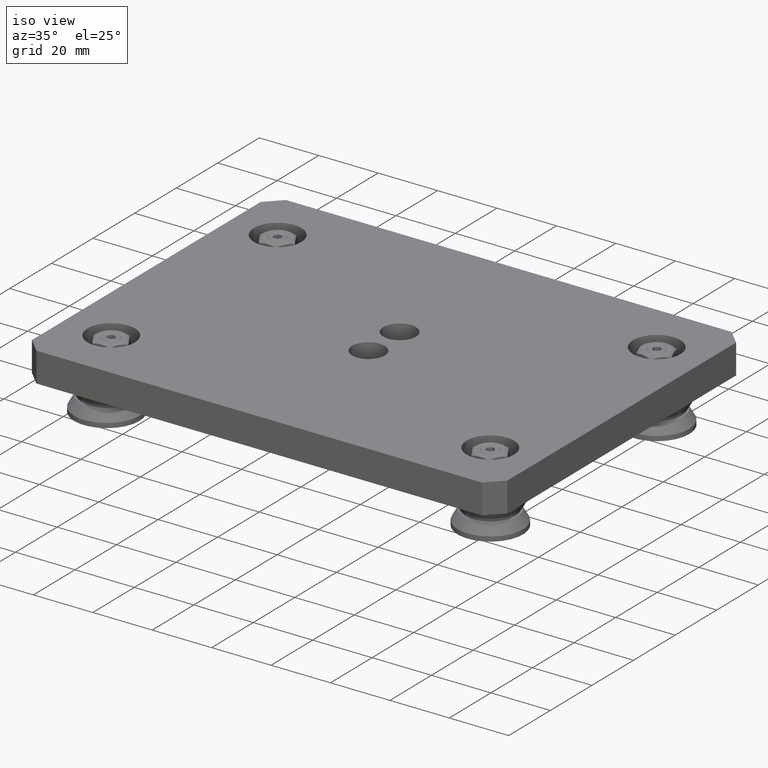
[diagram: clean part render]
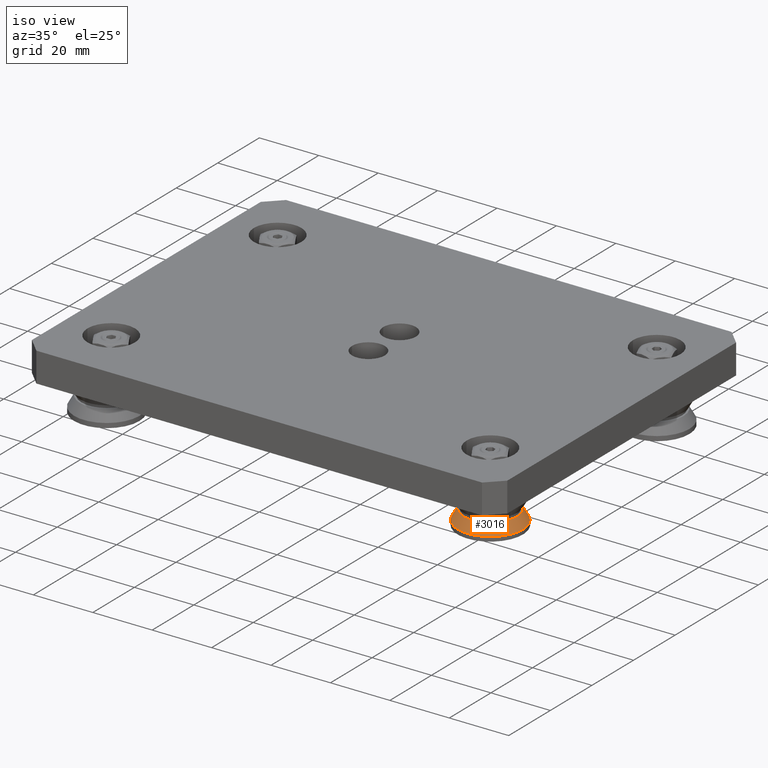
[diagram: same view with one face highlighted and labeled with its STEP entity id]
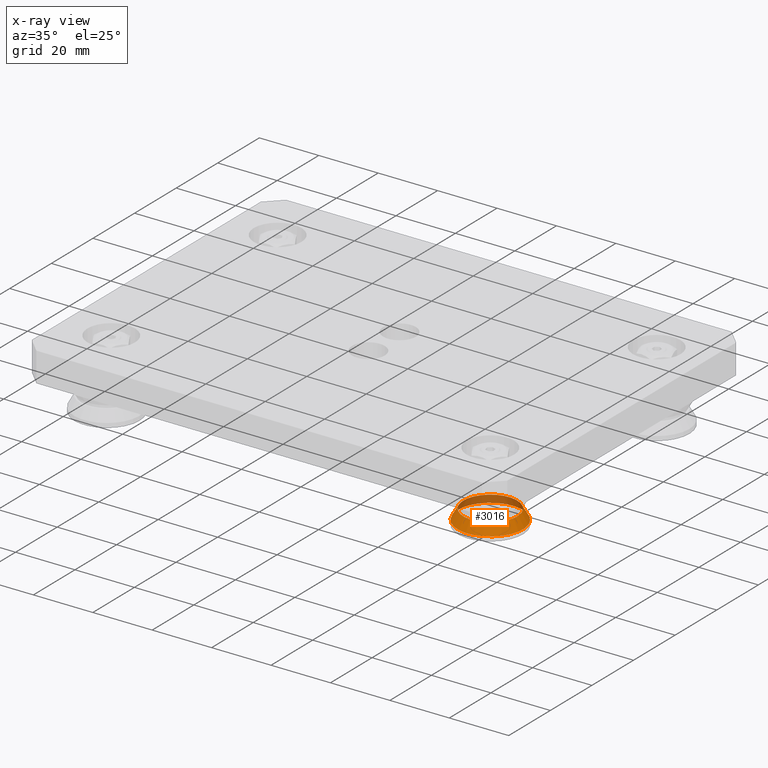
[diagram: x-ray of the same camera — body ghosted, the highlighted face saturated]
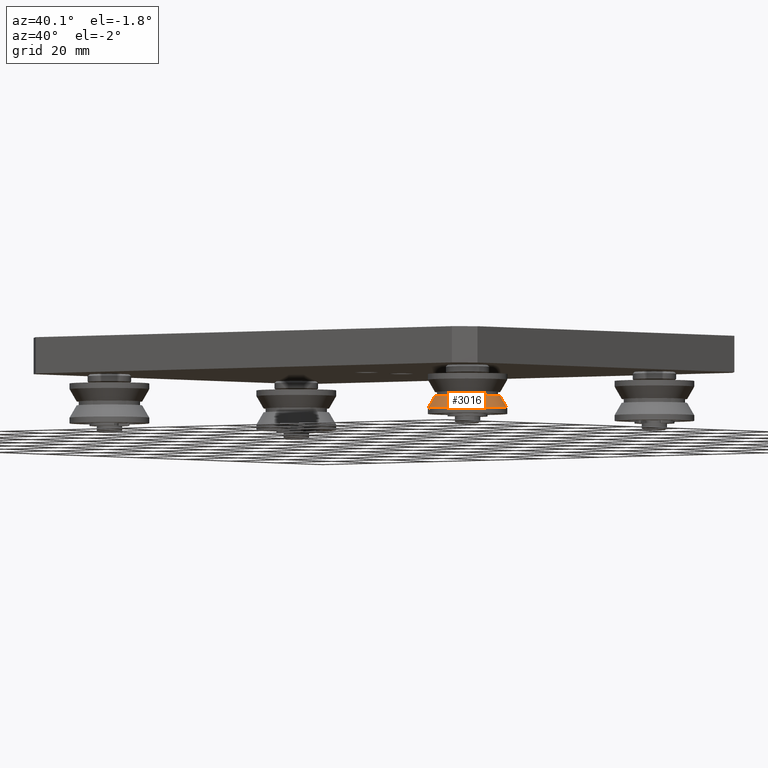
[diagram: same view with one face highlighted and labeled with its STEP entity id]
A machine part, iso view. The second image highlights one B-rep face of the part: STEP entity #3016.
The next image is the same camera in x-ray: the body ghosted, the highlighted face saturated — about 28% of this face is hidden behind the body in this view.
A second angle (auxiliary view) of the same face is appended — the face is thin or edge-on in the first view.
In plain terms, the highlighted conical surface has half-angle 30 deg.
Its self-contained STEP definition (entity closure, byte-faithful):
#111=CONICAL_SURFACE('',#3530,10.022019978079,0.523598775598303);
#374=CIRCLE('',#3529,11.);
#375=CIRCLE('',#3531,9.04403995615804);
#562=FACE_OUTER_BOUND('',#783,.T.);
#783=EDGE_LOOP('',(#2529,#2530,#2531,#2532));
#1015=LINE('',#5247,#1243);
#1243=VECTOR('',#4313,10.022019978079);
#1478=VERTEX_POINT('',#5241);
#1479=VERTEX_POINT('',#5245);
#1839=EDGE_CURVE('',#1478,#1478,#374,.T.);
#1841=EDGE_CURVE('',#1479,#1479,#375,.T.);
#1842=EDGE_CURVE('',#1479,#1478,#1015,.T.);
#2529=ORIENTED_EDGE('',*,*,#1841,.F.);
#2530=ORIENTED_EDGE('',*,*,#1842,.T.);
#2531=ORIENTED_EDGE('',*,*,#1839,.T.);
#2532=ORIENTED_EDGE('',*,*,#1842,.F.);
#3016=ADVANCED_FACE('',(#562),#111,.T.);
#3529=AXIS2_PLACEMENT_3D('',#5242,#4306,#4307);
#3530=AXIS2_PLACEMENT_3D('',#5244,#4309,#4310);
#3531=AXIS2_PLACEMENT_3D('',#5246,#4311,#4312);
#4306=DIRECTION('center_axis',(1.,0.,0.));
#4307=DIRECTION('ref_axis',(0.,1.,0.));
#4309=DIRECTION('center_axis',(-1.,0.,0.));
#4310=DIRECTION('ref_axis',(0.,1.,0.));
#4311=DIRECTION('center_axis',(1.,0.,0.));
#4312=DIRECTION('ref_axis',(0.,1.,0.));
#4313=DIRECTION('',(-0.866025403784437,-0.500000000000003,-6.12323399573681E-17));
#5241=CARTESIAN_POINT('',(-3.9378221735089,-11.,-1.34711147906209E-15));
#5242=CARTESIAN_POINT('Origin',(-3.9378221735089,0.,0.));
#5244=CARTESIAN_POINT('Origin',(-2.24391108675445,0.,0.));
#5245=CARTESIAN_POINT('',(-0.549999999999999,-9.04403995615804,-1.10757545836697E-15));
#5246=CARTESIAN_POINT('Origin',(-0.55,0.,0.));
#5247=CARTESIAN_POINT('',(-2.24391108675445,-10.022019978079,-1.22734346871453E-15));